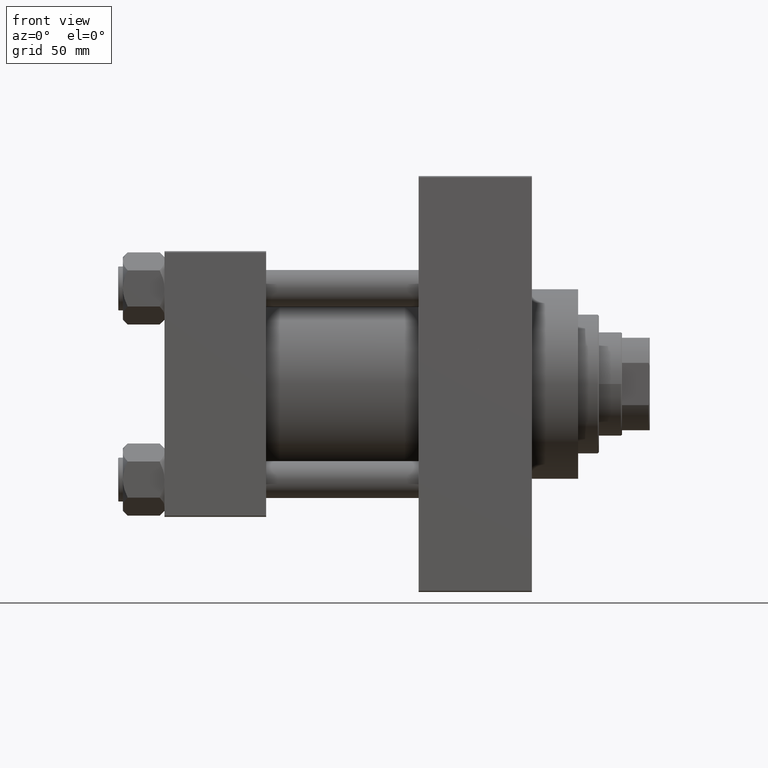
[diagram: clean part render]
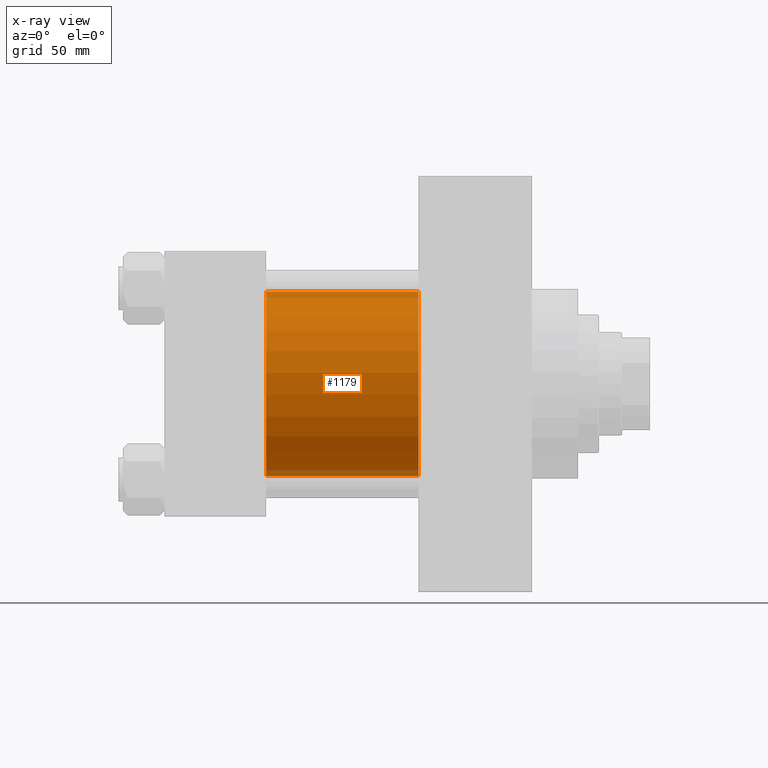
[diagram: x-ray — body ghosted, one internal face saturated and labeled with its STEP entity id]
A machine part, front view, then the same camera in x-ray: the body is ghosted and one INTERNAL B-rep face — a face not visible from any outside direction — is saturated and labeled: STEP entity #1179.
In plain terms, the highlighted cylindrical surface (partial cylindrical patch) has radius 40 mm, axis along (-1, -0, -0).
Its self-contained STEP definition (entity closure, byte-faithful):
#922 = VERTEX_POINT ( 'NONE', #18331 ) ;
#1025 = VECTOR ( 'NONE', #14557, 1000.000000000000000 ) ;
#1179 = ADVANCED_FACE ( 'NONE', ( #21072 ), #48002, .F. ) ;
#1185 = DIRECTION ( 'NONE',  ( 0.000000000000000000, 0.000000000000000000, 1.000000000000000000 ) ) ;
#1302 = AXIS2_PLACEMENT_3D ( 'NONE', #16801, #12775, #1185 ) ;
#4293 = DIRECTION ( 'NONE',  ( 0.000000000000000000, 0.000000000000000000, -1.000000000000000000 ) ) ;
#5871 = ORIENTED_EDGE ( 'NONE', *, *, #44788, .F. ) ;
#6398 = ORIENTED_EDGE ( 'NONE', *, *, #35246, .T. ) ;
#6751 = AXIS2_PLACEMENT_3D ( 'NONE', #30978, #33838, #4293 ) ;
#9973 = CIRCLE ( 'NONE', #6751, 40.00000000000000000 ) ;
#10109 = EDGE_CURVE ( 'NONE', #922, #40547, #36914, .T. ) ;
#12775 = DIRECTION ( 'NONE',  ( -1.000000000000000000, -0.000000000000000000, -0.000000000000000000 ) ) ;
#13292 = CARTESIAN_POINT ( 'NONE',  ( 110.0000000000000000, 2.296501982624201990E-15, -40.00000000000000000 ) ) ;
#13821 = DIRECTION ( 'NONE',  ( -1.000000000000000000, -0.000000000000000000, -0.000000000000000000 ) ) ;
#14545 = DIRECTION ( 'NONE',  ( 1.000000000000000000, 0.000000000000000000, 0.000000000000000000 ) ) ;
#14557 = DIRECTION ( 'NONE',  ( -1.000000000000000000, -0.000000000000000000, -0.000000000000000000 ) ) ;
#16801 = CARTESIAN_POINT ( 'NONE',  ( 110.0000000000000000, -2.602085213965210642E-15, 0.000000000000000000 ) ) ;
#17592 = VERTEX_POINT ( 'NONE', #13292 ) ;
#17886 = ORIENTED_EDGE ( 'NONE', *, *, #44907, .T. ) ;
#18323 = DIRECTION ( 'NONE',  ( 0.000000000000000000, 0.000000000000000000, -1.000000000000000000 ) ) ;
#18331 = CARTESIAN_POINT ( 'NONE',  ( 44.00000000000000000, -2.602085213965210642E-15, 40.00000000000000000 ) ) ;
#21072 = FACE_OUTER_BOUND ( 'NONE', #28220, .T. ) ;
#21861 = LINE ( 'NONE', #49039, #1025 ) ;
#27215 = CARTESIAN_POINT ( 'NONE',  ( 44.00000000000000000, 2.296501982624201990E-15, -40.00000000000000000 ) ) ;
#28081 = AXIS2_PLACEMENT_3D ( 'NONE', #29647, #14545, #18323 ) ;
#28220 = EDGE_LOOP ( 'NONE', ( #6398, #17886, #49823, #5871 ) ) ;
#29647 = CARTESIAN_POINT ( 'NONE',  ( 44.00000000000000000, -2.602085213965210642E-15, 0.000000000000000000 ) ) ;
#30978 = CARTESIAN_POINT ( 'NONE',  ( 110.0000000000000000, -2.602085213965210642E-15, 0.000000000000000000 ) ) ;
#33838 = DIRECTION ( 'NONE',  ( 1.000000000000000000, 0.000000000000000000, 0.000000000000000000 ) ) ;
#35246 = EDGE_CURVE ( 'NONE', #48452, #17592, #9973, .T. ) ;
#36914 = CIRCLE ( 'NONE', #28081, 40.00000000000000000 ) ;
#37219 = CARTESIAN_POINT ( 'NONE',  ( 110.0000000000000000, -2.602085213965210642E-15, 40.00000000000000000 ) ) ;
#40547 = VERTEX_POINT ( 'NONE', #27215 ) ;
#40758 = LINE ( 'NONE', #37219, #45225 ) ;
#43880 = CARTESIAN_POINT ( 'NONE',  ( 110.0000000000000000, -2.602085213965210642E-15, 40.00000000000000000 ) ) ;
#44788 = EDGE_CURVE ( 'NONE', #48452, #922, #40758, .T. ) ;
#44907 = EDGE_CURVE ( 'NONE', #17592, #40547, #21861, .T. ) ;
#45225 = VECTOR ( 'NONE', #13821, 1000.000000000000000 ) ;
#48002 = CYLINDRICAL_SURFACE ( 'NONE', #1302, 40.00000000000000000 ) ;
#48452 = VERTEX_POINT ( 'NONE', #43880 ) ;
#49039 = CARTESIAN_POINT ( 'NONE',  ( 110.0000000000000000, 2.296501982624201990E-15, -40.00000000000000000 ) ) ;
#49823 = ORIENTED_EDGE ( 'NONE', *, *, #10109, .F. ) ;